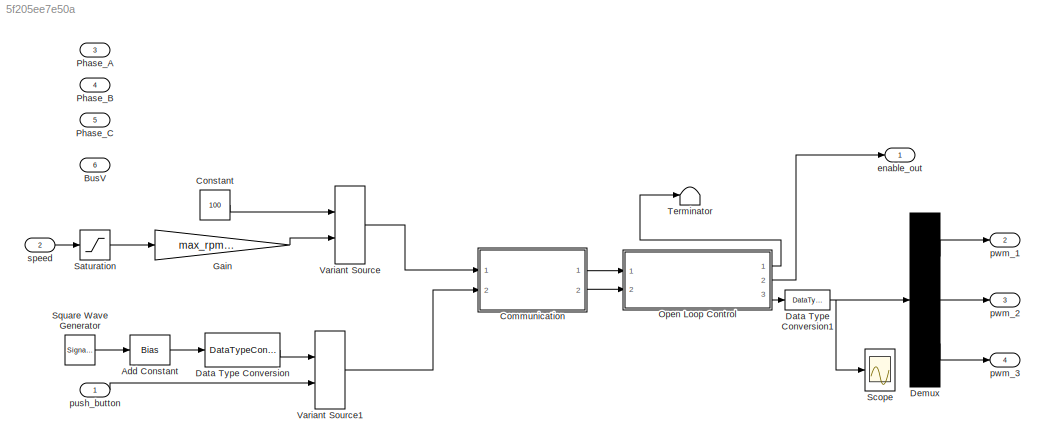
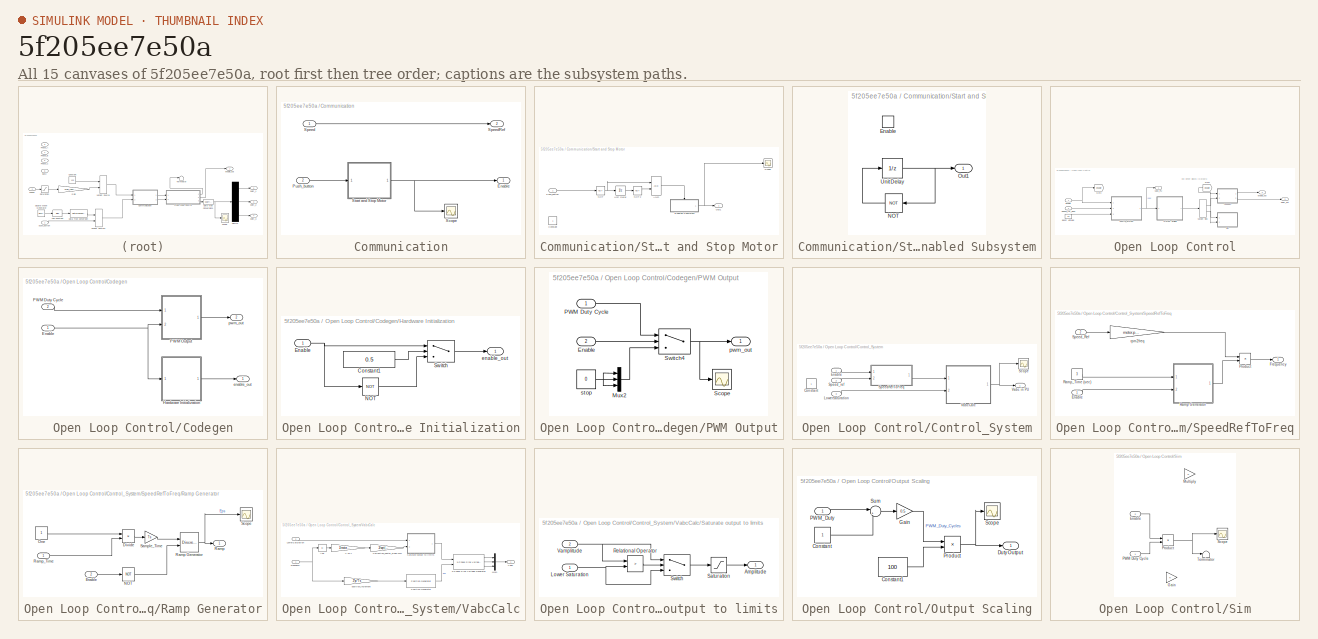
[diagram: thumbnail index - all 15 canvases of the model, root first then tree order]
MODEL slx_5f205ee7e50a
KIND model
CONFIG AbsTol = auto
CONFIG EnableMultiTasking = on
CONFIG FixedStep = 0.001
CONFIG InitFcn = dataType = 'single';\n\nmotor.polePairs = 6;\nmotor.base_speed = 4000;\nmotor.base_freq = 266.6667;\nmax_rpm = 1000;\nTs = 1e-3;
CONFIG MaxStep = auto
CONFIG MinStep = auto
CONFIG RelTol = 1e-3
CONFIG SampleTimeConstraint = Unconstrained
CONFIG SolverName = FixedStepAuto
CONFIG StartTime = 0.0
CONFIG StopTime = 10.0
BLOCK [Bias] Add Constant
  Bias = 0.5
  SaturateOnIntegerOverflow = off
BLOCK [Inport] BusV
  OutDataTypeStr = uint16
  Port = 6
BLOCK [SubSystem] Communication
  Ports = [2, 2]
  RequestExecContextInheritance = off
BLOCK [Outport] Communication/Enable
BLOCK [Inport] Communication/Push_button
  Port = 2
BLOCK [Scope] Communication/Scope
  Floating = off
  NumInputPorts = 1
  Ports = [1]
  ScopeSpecificationString = Simulink.scopes.TimeScopeBlockCfg('CurrentConfiguration', extmgr.ConfigurationSet(extmgr.Configuration('Core','General UI',true),extmgr.Configuration('Core','Source UI',true),extmgr.Configuration('Sources','WiredSimulink',true,'DataLoggingVariableName','ScopeData5'),extmgr.Configuration('Visuals','Time Domain',true,'SerializedDisplays',{struct('MinYLimReal','-0.125','MaxYLimReal','1.125','YLabelRe...<+1422ch>
BLOCK [Inport] Communication/Speed
BLOCK [Outport] Communication/SpeedRef
  Port = 2
  VectorParamsAs1DForOutWhenUnconnected = off
BLOCK [SubSystem] Communication/Start and Stop Motor
  Ports = [1, 1]
  RequestExecContextInheritance = off
  SystemSampleTime = 1e-3
  TreatAsAtomicUnit = on
BLOCK [Logic] Communication/Start and Stop Motor/AND
  AllPortsSameDT = off
  OutDataTypeStr = boolean
  Ports = [2, 1]
BLOCK [Constant] Communication/Start and Stop Motor/Constant
  SampleTime = -1
BLOCK [SubSystem] Communication/Start and Stop Motor/Enabled Subsystem
  Ports = [0, 1, 1]
  RequestExecContextInheritance = off
  TreatAsAtomicUnit = on
BLOCK [EnablePort] Communication/Start and Stop Motor/Enabled Subsystem/Enable
  Ports = []
BLOCK [Logic] Communication/Start and Stop Motor/Enabled Subsystem/NOT
  AllPortsSameDT = off
  IconShape = distinctive
  Operator = NOT
  OutDataTypeStr = boolean
  Ports = [1, 1]
BLOCK [Outport] Communication/Start and Stop Motor/Enabled Subsystem/Out1
BLOCK [UnitDelay] Communication/Start and Stop Motor/Enabled Subsystem/Unit Delay
  HasFrameUpgradeWarning = on
  InitialCondition = true
  SampleTime = -1
BLOCK [Logic] Communication/Start and Stop Motor/NOT
  AllPortsSameDT = off
  IconShape = distinctive
  Operator = NOT
  OutDataTypeStr = boolean
  Ports = [1, 1]
BLOCK [Logic] Communication/Start and Stop Motor/NOT2
  AllPortsSameDT = off
  IconShape = distinctive
  Operator = NOT
  OutDataTypeStr = boolean
  Ports = [1, 1]
BLOCK [Outport] Communication/Start and Stop Motor/Out1
BLOCK [Inport] Communication/Start and Stop Motor/Push_button
BLOCK [Scope] Communication/Start and Stop Motor/Scope
  Floating = off
  NumInputPorts = 1
  Ports = [1]
  ScopeSpecificationString = Simulink.scopes.TimeScopeBlockCfg('CurrentConfiguration', extmgr.ConfigurationSet(extmgr.Configuration('Core','General UI',true),extmgr.Configuration('Core','Source UI',true),extmgr.Configuration('Sources','WiredSimulink',true),extmgr.Configuration('Visuals','Time Domain',true),extmgr.Configuration('Tools','Plot Navigation',true),extmgr.Configuration('Tools','Measurements',true,'Version','2022a'))...<+19ch>
BLOCK [UnitDelay] Communication/Start and Stop Motor/Unit Delay
  HasFrameUpgradeWarning = on
  InitialCondition = false
  SampleTime = -1
BLOCK [Constant] Constant
  OutDataTypeStr = dataType
  Value = 100
BLOCK [DataTypeConversion] Data Type Conversion
  OutDataTypeStr = boolean
  RndMeth = Floor
  SaturateOnIntegerOverflow = off
BLOCK [DataTypeConversion] Data Type Conversion1
  OutDataTypeStr = uint32
  RndMeth = Floor
  SaturateOnIntegerOverflow = off
BLOCK [Demux] Demux
  Outputs = 3
  Ports = [1, 3]
BLOCK [Gain] Gain
  Gain = max_rpm/100
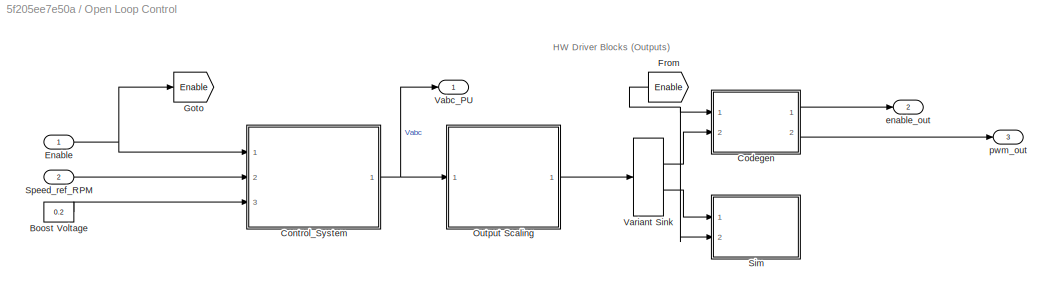
BLOCK [SubSystem] Open Loop Control
  Ports = [2, 3]
  RTWMemSecFuncExecute = code_ramfuncs
  RequestExecContextInheritance = off
BLOCK [Constant] Open Loop Control/Boost Voltage
  OutDataTypeStr = single
  Value = 0.2
BLOCK [SubSystem] Open Loop Control/Codegen
  Ports = [2, 2]
  RTWSystemCode = Nonreusable function
  RequestExecContextInheritance = off
BLOCK [Inport] Open Loop Control/Codegen/Enable
BLOCK [SubSystem] Open Loop Control/Codegen/Hardware Initialization
  Ports = [1, 1]
  RTWSystemCode = Nonreusable function
  RequestExecContextInheritance = off
BLOCK [Constant] Open Loop Control/Codegen/Hardware Initialization/Constant1
  OutDataTypeStr = uint16
  Value = 0.5
BLOCK [Inport] Open Loop Control/Codegen/Hardware Initialization/Enable
BLOCK [Logic] Open Loop Control/Codegen/Hardware Initialization/NOT
  AllPortsSameDT = off
  IconShape = distinctive
  Operator = NOT
  OutDataTypeStr = boolean
  Ports = [1, 1]
BLOCK [Switch] Open Loop Control/Codegen/Hardware Initialization/Switch
  Criteria = u2 > Threshold
  InputSameDT = off
  OutDataTypeStr = boolean
  RndMeth = Simplest
  SaturateOnIntegerOverflow = off
BLOCK [Outport] Open Loop Control/Codegen/Hardware Initialization/enable_out
BLOCK [Inport] Open Loop Control/Codegen/PWM Duty Cycle
  Port = 2
BLOCK [SubSystem] Open Loop Control/Codegen/PWM Output
  Ports = [2, 1]
  RTWSystemCode = Nonreusable function
  RequestExecContextInheritance = off
BLOCK [Inport] Open Loop Control/Codegen/PWM Output/Enable
  Port = 2
BLOCK [Mux] Open Loop Control/Codegen/PWM Output/Mux2
  DisplayOption = bar
  Inputs = 3
  Ports = [3, 1]
BLOCK [Inport] Open Loop Control/Codegen/PWM Output/PWM Duty Cycle
BLOCK [Scope] Open Loop Control/Codegen/PWM Output/Scope
  Floating = off
  NumInputPorts = 1
  Ports = [1]
  ScopeSpecificationString = Simulink.scopes.TimeScopeBlockCfg('CurrentConfiguration', extmgr.ConfigurationSet(extmgr.Configuration('Core','General UI',true),extmgr.Configuration('Core','Source UI',true),extmgr.Configuration('Sources','WiredSimulink',true,'DataLoggingVariableName','ScopeData6'),extmgr.Configuration('Visuals','Time Domain',true),extmgr.Configuration('Tools','Plot Navigation',true),extmgr.Configuration('Tools',...<+40ch>
BLOCK [Switch] Open Loop Control/Codegen/PWM Output/Switch4
  InputSameDT = off
  RndMeth = Simplest
  SaturateOnIntegerOverflow = off
  Threshold = 0.5
BLOCK [Outport] Open Loop Control/Codegen/PWM Output/pwm_out
BLOCK [Constant] Open Loop Control/Codegen/PWM Output/stop
  OutDataTypeStr = single
  Value = 0
BLOCK [Outport] Open Loop Control/Codegen/enable_out
BLOCK [Outport] Open Loop Control/Codegen/pwm_out
  Port = 2
BLOCK [SubSystem] Open Loop Control/Control_System
  Ports = [3, 1]
  RTWSystemCode = Nonreusable function
  RequestExecContextInheritance = off
BLOCK [Constant] Open Loop Control/Control_System/Constant
BLOCK [Inport] Open Loop Control/Control_System/Enable
BLOCK [Inport] Open Loop Control/Control_System/LowerSaturation
  Port = 3
BLOCK [Scope] Open Loop Control/Control_System/Scope
  Floating = off
  NumInputPorts = 1
  Ports = [1]
  ScopeSpecificationString = Simulink.scopes.TimeScopeBlockCfg('CurrentConfiguration', extmgr.ConfigurationSet(extmgr.Configuration('Core','General UI',true),extmgr.Configuration('Core','Source UI',true),extmgr.Configuration('Sources','WiredSimulink',true,'DataLoggingVariableName','ScopeData2'),extmgr.Configuration('Visuals','Time Domain',true,'SerializedDisplays',{struct('MinYLimReal','-0.25','MaxYLimReal','0.25','YLabelReal...<+1406ch>
BLOCK [SubSystem] Open Loop Control/Control_System/SpeedRefToFreq
  Ports = [2, 1]
  RequestExecContextInheritance = off
BLOCK [Inport] Open Loop Control/Control_System/SpeedRefToFreq/Enable
BLOCK [Outport] Open Loop Control/Control_System/SpeedRefToFreq/Frequency
BLOCK [Product] Open Loop Control/Control_System/SpeedRefToFreq/Product
  OutDataTypeStr = Inherit: Same as first input
  Ports = [2, 1]
  RndMeth = Simplest
BLOCK [SubSystem] Open Loop Control/Control_System/SpeedRefToFreq/Ramp Generator
  Ports = [2, 1]
  RequestExecContextInheritance = off
BLOCK [Product] Open Loop Control/Control_System/SpeedRefToFreq/Ramp Generator/Divide
  Inputs = */
  OutDataTypeStr = Inherit: Same as first input
  Ports = [2, 1]
  RndMeth = Simplest
BLOCK [Inport] Open Loop Control/Control_System/SpeedRefToFreq/Ramp Generator/Enable
  Port = 2
BLOCK [Logic] Open Loop Control/Control_System/SpeedRefToFreq/Ramp Generator/NOT
  AllPortsSameDT = off
  IconShape = distinctive
  Operator = NOT
  OutDataTypeStr = boolean
  Ports = [1, 1]
BLOCK [Constant] Open Loop Control/Control_System/SpeedRefToFreq/Ramp Generator/One
  OutDataTypeStr = dataType
  SampleTime = -1
BLOCK [Outport] Open Loop Control/Control_System/SpeedRefToFreq/Ramp Generator/Ramp
BLOCK [DiscreteIntegrator] Open Loop Control/Control_System/SpeedRefToFreq/Ramp Generator/Ramp Generator
  ExternalReset = either
  ICPrevOutput = DiscIntNeverNeededParam
  ICPrevScaledInput = DiscIntNeverNeededParam
  IntegratorMethod = Accumulation: Forward Euler
  LimitOutput = on
  LowerSaturationLimit = 0
  OutDataTypeStr = dataType
  Ports = [2, 1]
  RndMeth = Simplest
  SampleTime = -1
  UpperSaturationLimit = 1
  gainval = 1
BLOCK [Inport] Open Loop Control/Control_System/SpeedRefToFreq/Ramp Generator/Ramp_Time
BLOCK [Gain] Open Loop Control/Control_System/SpeedRefToFreq/Ramp Generator/Sample_Time
  Gain = Ts
  OutDataTypeStr = Inherit: Same as input
  RndMeth = Simplest
BLOCK [Scope] Open Loop Control/Control_System/SpeedRefToFreq/Ramp Generator/Scope
  Floating = off
  NumInputPorts = 1
  Ports = [1]
  ScopeSpecificationString = Simulink.scopes.TimeScopeBlockCfg('CurrentConfiguration', extmgr.ConfigurationSet(extmgr.Configuration('Core','General UI',true),extmgr.Configuration('Core','Source UI',true),extmgr.Configuration('Sources','WiredSimulink',true,'DataLoggingVariableName','ScopeData4'),extmgr.Configuration('Visuals','Time Domain',true,'SerializedDisplays',{struct('MinYLimReal','-0.08329','MaxYLimReal','0.74962','YLab...<+1362ch>
BLOCK [Constant] Open Loop Control/Control_System/SpeedRefToFreq/Ramp_Time (sec)
  OutDataTypeStr = dataType
  SampleTime = -1
  Value = 3
BLOCK [Inport] Open Loop Control/Control_System/SpeedRefToFreq/Speed_Ref
  Port = 2
BLOCK [Gain] Open Loop Control/Control_System/SpeedRefToFreq/rpm2freq
  Gain = motor.polePairs/60
  OutDataTypeStr = dataType
  RndMeth = Simplest
BLOCK [Inport] Open Loop Control/Control_System/Speed_ref
  Port = 2
BLOCK [Outport] Open Loop Control/Control_System/Vabc in PU
  VectorParamsAs1DForOutWhenUnconnected = off
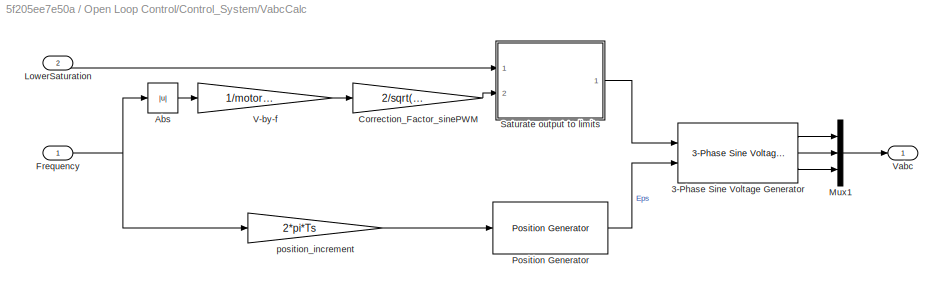
BLOCK [SubSystem] Open Loop Control/Control_System/VabcCalc
  Ports = [2, 1]
  RequestExecContextInheritance = off
BLOCK [Reference] Open Loop Control/Control_System/VabcCalc/3-Phase Sine Voltage Generator  REF=mcbcontrolslib/3-Phase Sine Voltage Generator
  Ports = [2, 3]
  SourceBlock = mcbcontrolslib/3-Phase Sine Voltage Generator
  SourceProductBaseCode = MT
  SourceType = 3-Phase Sine Voltage Generator
BLOCK [Abs] Open Loop Control/Control_System/VabcCalc/Abs
  RndMeth = Simplest
  SaturateOnIntegerOverflow = off
BLOCK [Gain] Open Loop Control/Control_System/VabcCalc/Correction_Factor_sinePWM
  Gain = 2/sqrt(3)
  OutDataTypeStr = Inherit: Same as input
  RndMeth = Simplest
BLOCK [Inport] Open Loop Control/Control_System/VabcCalc/Frequency
BLOCK [Inport] Open Loop Control/Control_System/VabcCalc/LowerSaturation
  Port = 2
BLOCK [Mux] Open Loop Control/Control_System/VabcCalc/Mux1
  DisplayOption = bar
  Inputs = 3
  Ports = [3, 1]
BLOCK [Reference] Open Loop Control/Control_System/VabcCalc/Position Generator  REF=mcbcontrolslib/Position Generator
  Ports = [1, 1]
  SourceBlock = mcbcontrolslib/Position Generator
  SourceProductBaseCode = MT
  SourceType = Position Generator
BLOCK [SubSystem] Open Loop Control/Control_System/VabcCalc/Saturate output to limits
  Ports = [2, 1]
  RequestExecContextInheritance = off
BLOCK [Outport] Open Loop Control/Control_System/VabcCalc/Saturate output to limits/Amplitude
BLOCK [Inport] Open Loop Control/Control_System/VabcCalc/Saturate output to limits/Lower Saturation
BLOCK [RelationalOperator] Open Loop Control/Control_System/VabcCalc/Saturate output to limits/Relational Operator
  InputSameDT = off
  Operator = >
  OutDataTypeStr = boolean
  Ports = [2, 1]
  RndMeth = Simplest
BLOCK [Saturate] Open Loop Control/Control_System/VabcCalc/Saturate output to limits/Saturation
  LowerLimit = 0
  RndMeth = Simplest
  UpperLimit = 0.95
BLOCK [Switch] Open Loop Control/Control_System/VabcCalc/Saturate output to limits/Switch
  Criteria = u2 > Threshold
  InputSameDT = off
  SaturateOnIntegerOverflow = off
BLOCK [Inport] Open Loop Control/Control_System/VabcCalc/Saturate output to limits/Vamplitude
  Port = 2
BLOCK [Gain] Open Loop Control/Control_System/VabcCalc/V-by-f
  Gain = 1/motor.base_freq
  OutDataTypeStr = Inherit: Same as input
  RndMeth = Simplest
BLOCK [Outport] Open Loop Control/Control_System/VabcCalc/Vabc
BLOCK [Gain] Open Loop Control/Control_System/VabcCalc/position_increment
  Gain = 2*pi*Ts
  OutDataTypeStr = Inherit: Same as input
  RndMeth = Simplest
BLOCK [Inport] Open Loop Control/Enable
BLOCK [From] Open Loop Control/From
  GotoTag = Enable
BLOCK [Goto] Open Loop Control/Goto
  GotoTag = Enable
BLOCK [SubSystem] Open Loop Control/Output Scaling
  Ports = [1, 1]
  RTWSystemCode = Nonreusable function
  RequestExecContextInheritance = off
BLOCK [Constant] Open Loop Control/Output Scaling/Constant
  OutDataTypeStr = dataType
BLOCK [Constant] Open Loop Control/Output Scaling/Constant1
  OutDataTypeStr = dataType
  Value = 100
BLOCK [Outport] Open Loop Control/Output Scaling/Duty Output
BLOCK [Gain] Open Loop Control/Output Scaling/Gain
  Gain = 0.5
  OutDataTypeStr = Inherit: Same as input
  RndMeth = Simplest
BLOCK [Inport] Open Loop Control/Output Scaling/PWM_Duty
BLOCK [Product] Open Loop Control/Output Scaling/Product
  OutDataTypeStr = Inherit: Same as first input
  Ports = [2, 1]
  RndMeth = Simplest
BLOCK [Scope] Open Loop Control/Output Scaling/Scope
  Floating = off
  NumInputPorts = 1
  Ports = [1]
  ScopeSpecificationString = Simulink.scopes.TimeScopeBlockCfg('CurrentConfiguration', extmgr.ConfigurationSet(extmgr.Configuration('Core','General UI',true),extmgr.Configuration('Core','Source UI',true),extmgr.Configuration('Sources','WiredSimulink',true,'DataLoggingVariableName','ScopeData3'),extmgr.Configuration('Visuals','Time Domain',true,'SerializedDisplays',{struct('MinYLimReal','37.50003','MaxYLimReal','62.49997','YLa...<+1398ch>
BLOCK [Sum] Open Loop Control/Output Scaling/Sum
  AccumDataTypeStr = Inherit: Same as first input
  Inputs = |++
  Ports = [2, 1]
BLOCK [SubSystem] Open Loop Control/Sim
  Ports = [2]
  RequestExecContextInheritance = off
BLOCK [Inport] Open Loop Control/Sim/Enable
  Port = 2
BLOCK [Gain] Open Loop Control/Sim/Gain
BLOCK [Gain] Open Loop Control/Sim/Multiply
BLOCK [Inport] Open Loop Control/Sim/PWM Duty Cycle
BLOCK [Product] Open Loop Control/Sim/Product
  Ports = [2, 1]
BLOCK [Scope] Open Loop Control/Sim/Scope
  Floating = off
  NumInputPorts = 1
  Ports = [1]
  ScopeSpecificationString = Simulink.scopes.TimeScopeBlockCfg('CurrentConfiguration', extmgr.ConfigurationSet(extmgr.Configuration('Core','General UI',true),extmgr.Configuration('Core','Source UI',true),extmgr.Configuration('Sources','WiredSimulink',true),extmgr.Configuration('Visuals','Time Domain',true,'SerializedDisplays',{struct('MinYLimReal','-7.5','MaxYLimReal','67.49997','YLabelReal','','MinYLimMag','0.00000','MaxYLim...<+1379ch>
BLOCK [Terminator] Open Loop Control/Sim/Terminator
BLOCK [Inport] Open Loop Control/Speed_ref_RPM
  Port = 2
BLOCK [Outport] Open Loop Control/Vabc_PU
  VectorParamsAs1DForOutWhenUnconnected = off
BLOCK [VariantSink] Open Loop Control/Variant Sink
  Ports = [1, 2]
  VariantControlMode = sim codegen switching
BLOCK [Outport] Open Loop Control/enable_out
  Port = 2
BLOCK [Outport] Open Loop Control/pwm_out
  Port = 3
BLOCK [Inport] Phase_A
  OutDataTypeStr = uint16
  Port = 3
BLOCK [Inport] Phase_B
  OutDataTypeStr = uint16
  Port = 4
BLOCK [Inport] Phase_C
  OutDataTypeStr = uint16
  Port = 5
BLOCK [Saturate] Saturation
  LowerLimit = 0
  UpperLimit = 100
BLOCK [Scope] Scope
  Floating = off
  NumInputPorts = 1
  Ports = [1]
  ScopeSpecificationString = Simulink.scopes.TimeScopeBlockCfg('CurrentConfiguration', extmgr.ConfigurationSet(extmgr.Configuration('Core','General UI',true),extmgr.Configuration('Core','Source UI',true),extmgr.Configuration('Sources','WiredSimulink',true,'DataLoggingVariableName','ScopeData1'),extmgr.Configuration('Visuals','Time Domain',true,'SerializedDisplays',{struct('MinYLimReal','-1.00000','MaxYLimReal','1.00000','YLab...<+1596ch>
BLOCK [SignalGenerator] Square Wave Generator
  Amplitude = 0.5
  Frequency = 0.5
  Ports = [0, 1]
  WaveForm = square
BLOCK [Terminator] Terminator
BLOCK [VariantSource] Variant Source
  Ports = [2, 1]
  VariantControlMode = sim codegen switching
BLOCK [VariantSource] Variant Source1
  Ports = [2, 1]
  VariantControlMode = sim codegen switching
BLOCK [Outport] enable_out
BLOCK [Inport] push_button
  OutDataTypeStr = boolean
BLOCK [Outport] pwm_1
  Port = 2
BLOCK [Outport] pwm_2
  Port = 3
BLOCK [Outport] pwm_3
  Port = 4
BLOCK [Inport] speed
  OutDataTypeStr = uint16
  Port = 2
ANNOTATION Open Loop Control: HW Driver Blocks (Outputs)
LINE Add Constant:1 -> Data Type Conversion:1
LINE Communication/Push_button:1 -> Communication/Start and Stop Motor:1
LINE Communication/Speed:1 -> Communication/SpeedRef:1
LINE Communication/Start and Stop Motor/AND:1 -> Communication/Start and Stop Motor/Enabled Subsystem:enable
LINE Communication/Start and Stop Motor/Enabled Subsystem/NOT:1 -> Communication/Start and Stop Motor/Enabled Subsystem/Unit Delay:1
NET Communication/Start and Stop Motor/Enabled Subsystem/Unit Delay:1 -> Communication/Start and Stop Motor/Enabled Subsystem/NOT:1, Communication/Start and Stop Motor/Enabled Subsystem/Out1:1
NET Communication/Start and Stop Motor/Enabled Subsystem:1 -> Communication/Start and Stop Motor/Out1:1, Communication/Start and Stop Motor/Scope:1
LINE Communication/Start and Stop Motor/NOT2:1 -> Communication/Start and Stop Motor/AND:2
NET Communication/Start and Stop Motor/NOT:1 -> Communication/Start and Stop Motor/AND:1, Communication/Start and Stop Motor/Unit Delay:1
LINE Communication/Start and Stop Motor/Push_button:1 -> Communication/Start and Stop Motor/NOT:1
LINE Communication/Start and Stop Motor/Unit Delay:1 -> Communication/Start and Stop Motor/NOT2:1
NET Communication/Start and Stop Motor:1 -> Communication/Enable:1, Communication/Scope:1
LINE Communication:1 -> Open Loop Control:1
LINE Communication:2 -> Open Loop Control:2
LINE Constant:1 -> Variant Source:1
NET Data Type Conversion1:1 -> Demux:1, Scope:1
LINE Data Type Conversion:1 -> Variant Source1:1
LINE Demux:1 -> pwm_1:1
LINE Demux:2 -> pwm_2:1
LINE Demux:3 -> pwm_3:1
LINE Gain:1 -> Variant Source:2
LINE Open Loop Control/Boost Voltage:1 -> Open Loop Control/Control_System:3
NET Open Loop Control/Codegen/Enable:1 -> Open Loop Control/Codegen/Hardware Initialization:1, Open Loop Control/Codegen/PWM Output:2
LINE Open Loop Control/Codegen/Hardware Initialization/Constant1:1 -> Open Loop Control/Codegen/Hardware Initialization/Switch:2
NET Open Loop Control/Codegen/Hardware Initialization/Enable:1 -> Open Loop Control/Codegen/Hardware Initialization/NOT:1, Open Loop Control/Codegen/Hardware Initialization/Switch:1
LINE Open Loop Control/Codegen/Hardware Initialization/NOT:1 -> Open Loop Control/Codegen/Hardware Initialization/Switch:3
LINE Open Loop Control/Codegen/Hardware Initialization/Switch:1 -> Open Loop Control/Codegen/Hardware Initialization/enable_out:1
LINE Open Loop Control/Codegen/Hardware Initialization:1 -> Open Loop Control/Codegen/enable_out:1
LINE Open Loop Control/Codegen/PWM Duty Cycle:1 -> Open Loop Control/Codegen/PWM Output:1
LINE Open Loop Control/Codegen/PWM Output/Enable:1 -> Open Loop Control/Codegen/PWM Output/Switch4:2
LINE Open Loop Control/Codegen/PWM Output/Mux2:1 -> Open Loop Control/Codegen/PWM Output/Switch4:3
LINE Open Loop Control/Codegen/PWM Output/PWM Duty Cycle:1 -> Open Loop Control/Codegen/PWM Output/Switch4:1
NET Open Loop Control/Codegen/PWM Output/Switch4:1 -> Open Loop Control/Codegen/PWM Output/Scope:1, Open Loop Control/Codegen/PWM Output/pwm_out:1
NET Open Loop Control/Codegen/PWM Output/stop:1 -> Open Loop Control/Codegen/PWM Output/Mux2:1, Open Loop Control/Codegen/PWM Output/Mux2:2, Open Loop Control/Codegen/PWM Output/Mux2:3
LINE Open Loop Control/Codegen/PWM Output:1 -> Open Loop Control/Codegen/pwm_out:1
LINE Open Loop Control/Codegen:1 -> Open Loop Control/enable_out:1
LINE Open Loop Control/Codegen:2 -> Open Loop Control/pwm_out:1
LINE Open Loop Control/Control_System/Enable:1 -> Open Loop Control/Control_System/SpeedRefToFreq:1
LINE Open Loop Control/Control_System/LowerSaturation:1 -> Open Loop Control/Control_System/VabcCalc:2
LINE Open Loop Control/Control_System/SpeedRefToFreq/Enable:1 -> Open Loop Control/Control_System/SpeedRefToFreq/Ramp Generator:2
LINE Open Loop Control/Control_System/SpeedRefToFreq/Product:1 -> Open Loop Control/Control_System/SpeedRefToFreq/Frequency:1
LINE Open Loop Control/Control_System/SpeedRefToFreq/Ramp Generator/Divide:1 -> Open Loop Control/Control_System/SpeedRefToFreq/Ramp Generator/Sample_Time:1
LINE Open Loop Control/Control_System/SpeedRefToFreq/Ramp Generator/Enable:1 -> Open Loop Control/Control_System/SpeedRefToFreq/Ramp Generator/NOT:1
LINE Open Loop Control/Control_System/SpeedRefToFreq/Ramp Generator/NOT:1 -> Open Loop Control/Control_System/SpeedRefToFreq/Ramp Generator/Ramp Generator:2
LINE Open Loop Control/Control_System/SpeedRefToFreq/Ramp Generator/One:1 -> Open Loop Control/Control_System/SpeedRefToFreq/Ramp Generator/Divide:1
NET Open Loop Control/Control_System/SpeedRefToFreq/Ramp Generator/Ramp Generator:1 -> Open Loop Control/Control_System/SpeedRefToFreq/Ramp Generator/Ramp:1, Open Loop Control/Control_System/SpeedRefToFreq/Ramp Generator/Scope:1
LINE Open Loop Control/Control_System/SpeedRefToFreq/Ramp Generator/Ramp_Time:1 -> Open Loop Control/Control_System/SpeedRefToFreq/Ramp Generator/Divide:2
LINE Open Loop Control/Control_System/SpeedRefToFreq/Ramp Generator/Sample_Time:1 -> Open Loop Control/Control_System/SpeedRefToFreq/Ramp Generator/Ramp Generator:1
LINE Open Loop Control/Control_System/SpeedRefToFreq/Ramp Generator:1 -> Open Loop Control/Control_System/SpeedRefToFreq/Product:2
LINE Open Loop Control/Control_System/SpeedRefToFreq/Ramp_Time (sec):1 -> Open Loop Control/Control_System/SpeedRefToFreq/Ramp Generator:1
LINE Open Loop Control/Control_System/SpeedRefToFreq/Speed_Ref:1 -> Open Loop Control/Control_System/SpeedRefToFreq/rpm2freq:1
LINE Open Loop Control/Control_System/SpeedRefToFreq/rpm2freq:1 -> Open Loop Control/Control_System/SpeedRefToFreq/Product:1
LINE Open Loop Control/Control_System/SpeedRefToFreq:1 -> Open Loop Control/Control_System/VabcCalc:1
LINE Open Loop Control/Control_System/Speed_ref:1 -> Open Loop Control/Control_System/SpeedRefToFreq:2
LINE Open Loop Control/Control_System/VabcCalc/3-Phase Sine Voltage Generator:1 -> Open Loop Control/Control_System/VabcCalc/Mux1:1
LINE Open Loop Control/Control_System/VabcCalc/3-Phase Sine Voltage Generator:2 -> Open Loop Control/Control_System/VabcCalc/Mux1:2
LINE Open Loop Control/Control_System/VabcCalc/3-Phase Sine Voltage Generator:3 -> Open Loop Control/Control_System/VabcCalc/Mux1:3
LINE Open Loop Control/Control_System/VabcCalc/Abs:1 -> Open Loop Control/Control_System/VabcCalc/V-by-f:1
LINE Open Loop Control/Control_System/VabcCalc/Correction_Factor_sinePWM:1 -> Open Loop Control/Control_System/VabcCalc/Saturate output to limits:2
NET Open Loop Control/Control_System/VabcCalc/Frequency:1 -> Open Loop Control/Control_System/VabcCalc/Abs:1, Open Loop Control/Control_System/VabcCalc/position_increment:1
LINE Open Loop Control/Control_System/VabcCalc/LowerSaturation:1 -> Open Loop Control/Control_System/VabcCalc/Saturate output to limits:1
LINE Open Loop Control/Control_System/VabcCalc/Mux1:1 -> Open Loop Control/Control_System/VabcCalc/Vabc:1
LINE Open Loop Control/Control_System/VabcCalc/Position Generator:1 -> Open Loop Control/Control_System/VabcCalc/3-Phase Sine Voltage Generator:2
NET Open Loop Control/Control_System/VabcCalc/Saturate output to limits/Lower Saturation:1 -> Open Loop Control/Control_System/VabcCalc/Saturate output to limits/Relational Operator:2, Open Loop Control/Control_System/VabcCalc/Saturate output to limits/Switch:3
LINE Open Loop Control/Control_System/VabcCalc/Saturate output to limits/Relational Operator:1 -> Open Loop Control/Control_System/VabcCalc/Saturate output to limits/Switch:2
LINE Open Loop Control/Control_System/VabcCalc/Saturate output to limits/Saturation:1 -> Open Loop Control/Control_System/VabcCalc/Saturate output to limits/Amplitude:1
LINE Open Loop Control/Control_System/VabcCalc/Saturate output to limits/Switch:1 -> Open Loop Control/Control_System/VabcCalc/Saturate output to limits/Saturation:1
NET Open Loop Control/Control_System/VabcCalc/Saturate output to limits/Vamplitude:1 -> Open Loop Control/Control_System/VabcCalc/Saturate output to limits/Relational Operator:1, Open Loop Control/Control_System/VabcCalc/Saturate output to limits/Switch:1
LINE Open Loop Control/Control_System/VabcCalc/Saturate output to limits:1 -> Open Loop Control/Control_System/VabcCalc/3-Phase Sine Voltage Generator:1
LINE Open Loop Control/Control_System/VabcCalc/V-by-f:1 -> Open Loop Control/Control_System/VabcCalc/Correction_Factor_sinePWM:1
LINE Open Loop Control/Control_System/VabcCalc/position_increment:1 -> Open Loop Control/Control_System/VabcCalc/Position Generator:1
NET Open Loop Control/Control_System/VabcCalc:1 -> Open Loop Control/Control_System/Scope:1, Open Loop Control/Control_System/Vabc in PU:1
NET Open Loop Control/Control_System:1 -> Open Loop Control/Output Scaling:1, Open Loop Control/Vabc_PU:1
NET Open Loop Control/Enable:1 -> Open Loop Control/Control_System:1, Open Loop Control/Goto:1
NET Open Loop Control/From:1 -> Open Loop Control/Codegen:1, Open Loop Control/Sim:2
LINE Open Loop Control/Output Scaling/Constant1:1 -> Open Loop Control/Output Scaling/Product:2
LINE Open Loop Control/Output Scaling/Constant:1 -> Open Loop Control/Output Scaling/Sum:2
LINE Open Loop Control/Output Scaling/Gain:1 -> Open Loop Control/Output Scaling/Product:1
LINE Open Loop Control/Output Scaling/PWM_Duty:1 -> Open Loop Control/Output Scaling/Sum:1
NET Open Loop Control/Output Scaling/Product:1 -> Open Loop Control/Output Scaling/Duty Output:1, Open Loop Control/Output Scaling/Scope:1
LINE Open Loop Control/Output Scaling/Sum:1 -> Open Loop Control/Output Scaling/Gain:1
LINE Open Loop Control/Output Scaling:1 -> Open Loop Control/Variant Sink:1
LINE Open Loop Control/Sim/Enable:1 -> Open Loop Control/Sim/Product:1
LINE Open Loop Control/Sim/PWM Duty Cycle:1 -> Open Loop Control/Sim/Product:2
NET Open Loop Control/Sim/Product:1 -> Open Loop Control/Sim/Scope:1, Open Loop Control/Sim/Terminator:1
LINE Open Loop Control/Speed_ref_RPM:1 -> Open Loop Control/Control_System:2
LINE Open Loop Control/Variant Sink:1 -> Open Loop Control/Codegen:2
LINE Open Loop Control/Variant Sink:2 -> Open Loop Control/Sim:1
LINE Open Loop Control:1 -> Terminator:1
LINE Open Loop Control:2 -> enable_out:1
LINE Open Loop Control:3 -> Data Type Conversion1:1
LINE Saturation:1 -> Gain:1
LINE Square Wave Generator:1 -> Add Constant:1
LINE Variant Source1:1 -> Communication:2
LINE Variant Source:1 -> Communication:1
LINE push_button:1 -> Variant Source1:2
LINE speed:1 -> Saturation:1
note: NET lines group one-source signal fan-out (src -> all destinations, sorted); 1:1 wires keep LINE
